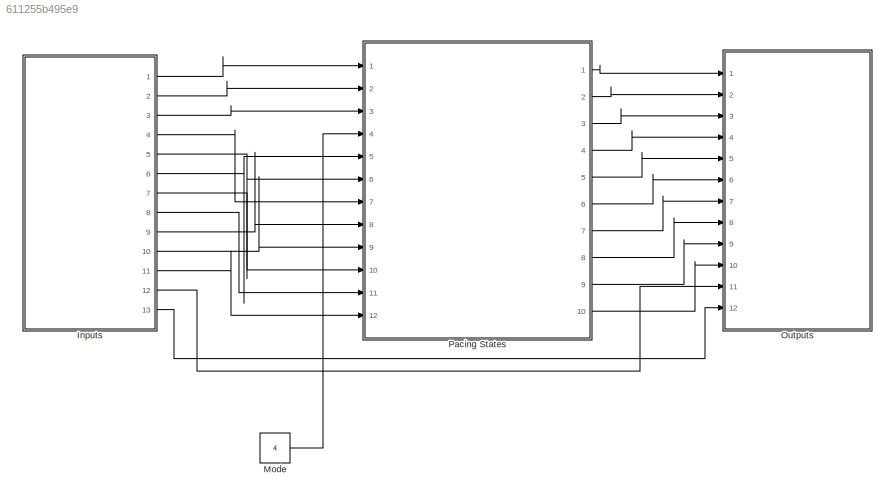
MODEL slx_611255b495e9
KIND model
CONFIG AbsTol = auto
CONFIG EnableMultiTasking = on
CONFIG FixedStep = 1e-3
CONFIG MaxStep = auto
CONFIG MinStep = auto
CONFIG RelTol = 1e-3
CONFIG SampleTimeConstraint = Unconstrained
CONFIG Solver = FixedStepAuto
CONFIG SolverName = FixedStepAuto
CONFIG StartTime = 0.0
CONFIG StopTime = 1.5
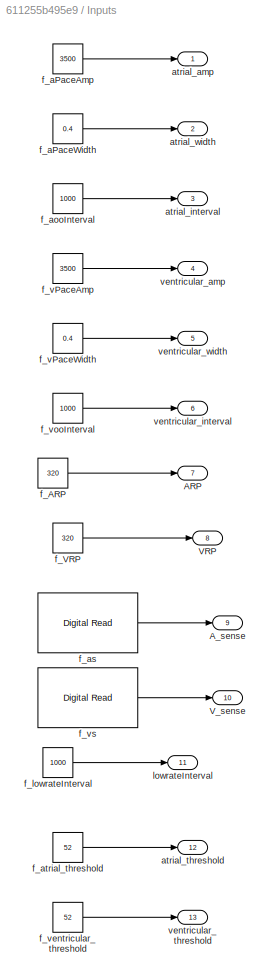
BLOCK [SubSystem] Inputs
  Ports = [0, 13]
  RequestExecContextInheritance = off
BLOCK [Outport] Inputs/ARP
  Port = 7
BLOCK [Outport] Inputs/A_sense
  Port = 9
BLOCK [Outport] Inputs/VRP
  Port = 8
BLOCK [Outport] Inputs/V_sense
  Port = 10
BLOCK [Outport] Inputs/atrial_amp
BLOCK [Outport] Inputs/atrial_interval
  Port = 3
BLOCK [Outport] Inputs/atrial_threshold
  Port = 12
BLOCK [Outport] Inputs/atrial_width
  Port = 2
BLOCK [Constant] Inputs/f_ARP
  Value = 320
BLOCK [Constant] Inputs/f_VRP
  Value = 320
BLOCK [Constant] Inputs/f_aPaceAmp
  Value = 3500
  VectorParams1D = off
BLOCK [Constant] Inputs/f_aPaceWidth
  Value = 0.4
BLOCK [Constant] Inputs/f_aooInterval
  Value = 1000
BLOCK [Reference] Inputs/f_as  REF=frdmk64flib/Digital Read
  Ports = [0, 1]
  SourceBlock = frdmk64flib/Digital Read
  SourceProductBaseCode = EC_FRDM_K64F
  SourceType = freedomk64f.DigitalRead
BLOCK [Constant] Inputs/f_atrial_threshold
  Value = 52
  VectorParams1D = off
BLOCK [Constant] Inputs/f_lowrateInterval
  Value = 1000
BLOCK [Constant] Inputs/f_vPaceAmp
  Value = 3500
  VectorParams1D = off
BLOCK [Constant] Inputs/f_vPaceWidth
  Value = 0.4
BLOCK [Constant] Inputs/f_ventricular_threshold
  Value = 52
BLOCK [Constant] Inputs/f_vooInterval
  Value = 1000
BLOCK [Reference] Inputs/f_vs  REF=frdmk64flib/Digital Read
  Ports = [0, 1]
  SourceBlock = frdmk64flib/Digital Read
  SourceProductBaseCode = EC_FRDM_K64F
  SourceType = freedomk64f.DigitalRead
BLOCK [Outport] Inputs/lowrateInterval
  Port = 11
BLOCK [Outport] Inputs/ventricular_amp
  Port = 4
BLOCK [Outport] Inputs/ventricular_interval
  Port = 6
BLOCK [Outport] Inputs/ventricular_threshold
  Port = 13
BLOCK [Outport] Inputs/ventricular_width
  Port = 5
BLOCK [Constant] Mode
  Value = 4
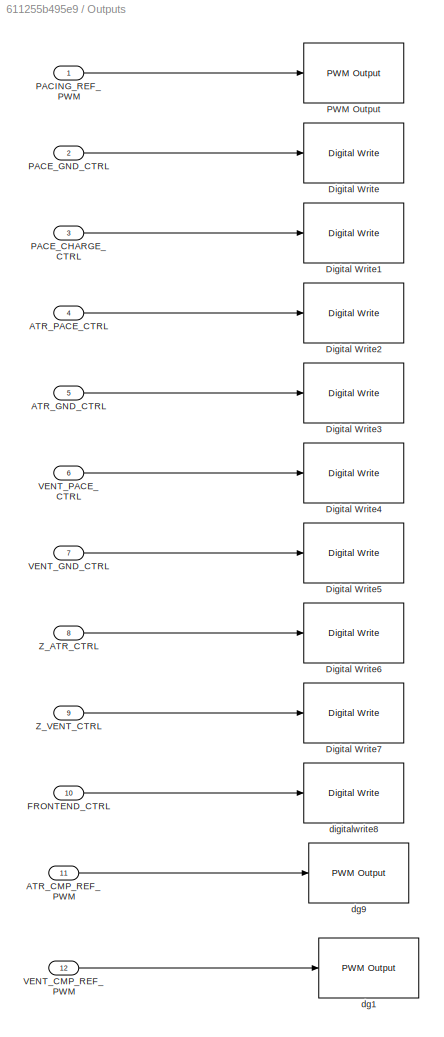
BLOCK [SubSystem] Outputs
  Ports = [12]
  RequestExecContextInheritance = off
BLOCK [Inport] Outputs/ATR_CMP_REF_PWM
  Port = 11
BLOCK [Inport] Outputs/ATR_GND_CTRL
  Port = 5
BLOCK [Inport] Outputs/ATR_PACE_CTRL
  Port = 4
BLOCK [Reference] Outputs/Digital Write  REF=frdmk64flib/Digital Write
  Ports = [1]
  SourceBlock = frdmk64flib/Digital Write
  SourceProductBaseCode = EC_FRDM_K64F
  SourceType = freedomk64f.DigitalWrite
BLOCK [Reference] Outputs/Digital Write1  REF=frdmk64flib/Digital Write
  Ports = [1]
  SourceBlock = frdmk64flib/Digital Write
  SourceProductBaseCode = EC_FRDM_K64F
  SourceType = freedomk64f.DigitalWrite
BLOCK [Reference] Outputs/Digital Write2  REF=frdmk64flib/Digital Write
  Ports = [1]
  SourceBlock = frdmk64flib/Digital Write
  SourceProductBaseCode = EC_FRDM_K64F
  SourceType = freedomk64f.DigitalWrite
BLOCK [Reference] Outputs/Digital Write3  REF=frdmk64flib/Digital Write
  Ports = [1]
  SourceBlock = frdmk64flib/Digital Write
  SourceProductBaseCode = EC_FRDM_K64F
  SourceType = freedomk64f.DigitalWrite
BLOCK [Reference] Outputs/Digital Write4  REF=frdmk64flib/Digital Write
  Ports = [1]
  SourceBlock = frdmk64flib/Digital Write
  SourceProductBaseCode = EC_FRDM_K64F
  SourceType = freedomk64f.DigitalWrite
BLOCK [Reference] Outputs/Digital Write5  REF=frdmk64flib/Digital Write
  Ports = [1]
  SourceBlock = frdmk64flib/Digital Write
  SourceProductBaseCode = EC_FRDM_K64F
  SourceType = freedomk64f.DigitalWrite
BLOCK [Reference] Outputs/Digital Write6  REF=frdmk64flib/Digital Write
  Ports = [1]
  SourceBlock = frdmk64flib/Digital Write
  SourceProductBaseCode = EC_FRDM_K64F
  SourceType = freedomk64f.DigitalWrite
BLOCK [Reference] Outputs/Digital Write7  REF=frdmk64flib/Digital Write
  Ports = [1]
  SourceBlock = frdmk64flib/Digital Write
  SourceProductBaseCode = EC_FRDM_K64F
  SourceType = freedomk64f.DigitalWrite
BLOCK [Inport] Outputs/FRONTEND_CTRL
  Port = 10
BLOCK [Inport] Outputs/PACE_CHARGE_CTRL
  Port = 3
BLOCK [Inport] Outputs/PACE_GND_CTRL
  Port = 2
BLOCK [Inport] Outputs/PACING_REF_PWM
BLOCK [Reference] Outputs/PWM Output  REF=frdmk64flib/PWM Output
  Ports = [1]
  SourceBlock = frdmk64flib/PWM Output
  SourceProductBaseCode = EC_FRDM_K64F
  SourceType = freedomk64f.PWMOutput
BLOCK [Inport] Outputs/VENT_CMP_REF_PWM
  Port = 12
BLOCK [Inport] Outputs/VENT_GND_CTRL
  Port = 7
BLOCK [Inport] Outputs/VENT_PACE_CTRL
  Port = 6
BLOCK [Inport] Outputs/Z_ATR_CTRL
  Port = 8
BLOCK [Inport] Outputs/Z_VENT_CTRL
  Port = 9
BLOCK [Reference] Outputs/dg1  REF=frdmk64flib/PWM Output
  Ports = [1]
  SourceBlock = frdmk64flib/PWM Output
  SourceProductBaseCode = EC_FRDM_K64F
  SourceType = freedomk64f.PWMOutput
BLOCK [Reference] Outputs/dg9  REF=frdmk64flib/PWM Output
  Ports = [1]
  SourceBlock = frdmk64flib/PWM Output
  SourceProductBaseCode = EC_FRDM_K64F
  SourceType = freedomk64f.PWMOutput
BLOCK [Reference] Outputs/digitalwrite8  REF=frdmk64flib/Digital Write
  Ports = [1]
  SourceBlock = frdmk64flib/Digital Write
  SourceProductBaseCode = EC_FRDM_K64F
  SourceType = freedomk64f.DigitalWrite
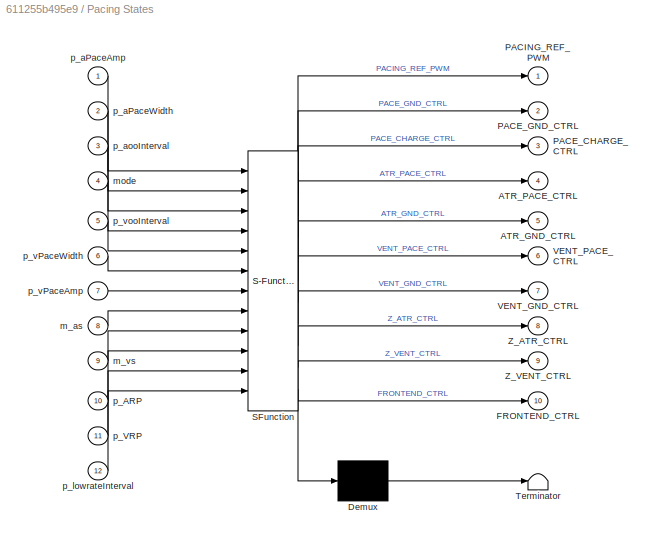
BLOCK [SubSystem] Pacing States
  ErrorFcn = Stateflow.Translate.translate
  PermitHierarchicalResolution = ExplicitOnly
  PortSchema = {"entries":[{"content":{"sides":[{"content":{"connectorIds":["In1","In2","In3","In7","In8","In9","In10","In11","In12","In6","In5","In4"]},"type":"ConnectorPlacement.EquallySpacedRectSide","uuid":"0802502d-289b-4258-bc43-1fdd19e28146"},{"content":{"connectorIds":["Out1","Out2","Out3","Out4","Out5","Out6","Out7","Out8","Out9","Out10"],"side":"RIGHT"},"type":"ConnectorPlacement.EquallySpacedRectSide"...<+375ch>
  Ports = [12, 10]
  RequestExecContextInheritance = off
  SFBlockType = Chart
  TreatAsAtomicUnit = on
BLOCK [Demux] Pacing States/ Demux 
  Outputs = 1
  Ports = [1, 1]
BLOCK [S-Function] Pacing States/ SFunction 
  EnableBusSupport = on
  FunctionName = sf_sfun
  PortCounts = [12 11]
  Ports = [12, 11]
  SFcnIsStateOwnerBlock = off
  SFunctionDeploymentMode = off
  Tag = Stateflow S-Function 3
BLOCK [Terminator] Pacing States/ Terminator 
BLOCK [Outport] Pacing States/ATR_GND_CTRL
  Port = 5
BLOCK [Outport] Pacing States/ATR_PACE_CTRL
  Port = 4
BLOCK [Outport] Pacing States/FRONTEND_CTRL
  Port = 10
BLOCK [Outport] Pacing States/PACE_CHARGE_CTRL
  Port = 3
BLOCK [Outport] Pacing States/PACE_GND_CTRL
  Port = 2
BLOCK [Outport] Pacing States/PACING_REF_PWM
BLOCK [Outport] Pacing States/VENT_GND_CTRL
  Port = 7
BLOCK [Outport] Pacing States/VENT_PACE_CTRL
  Port = 6
BLOCK [Outport] Pacing States/Z_ATR_CTRL
  Port = 8
BLOCK [Outport] Pacing States/Z_VENT_CTRL
  Port = 9
BLOCK [Inport] Pacing States/m_as
  Port = 8
BLOCK [Inport] Pacing States/m_vs
  Port = 9
BLOCK [Inport] Pacing States/mode
  Port = 4
BLOCK [Inport] Pacing States/p_ARP
  Port = 10
BLOCK [Inport] Pacing States/p_VRP
  Port = 11
BLOCK [Inport] Pacing States/p_aPaceAmp
BLOCK [Inport] Pacing States/p_aPaceWidth
  Port = 2
BLOCK [Inport] Pacing States/p_aooInterval
  Port = 3
BLOCK [Inport] Pacing States/p_lowrateInterval
  Port = 12
BLOCK [Inport] Pacing States/p_vPaceAmp
  Port = 7
BLOCK [Inport] Pacing States/p_vPaceWidth
  Port = 6
BLOCK [Inport] Pacing States/p_vooInterval
  Port = 5
LINE Inputs/f_ARP:1 -> Inputs/ARP:1
LINE Inputs/f_VRP:1 -> Inputs/VRP:1
LINE Inputs/f_aPaceAmp:1 -> Inputs/atrial_amp:1
LINE Inputs/f_aPaceWidth:1 -> Inputs/atrial_width:1
LINE Inputs/f_aooInterval:1 -> Inputs/atrial_interval:1
LINE Inputs/f_as:1 -> Inputs/A_sense:1
LINE Inputs/f_atrial_threshold:1 -> Inputs/atrial_threshold:1
LINE Inputs/f_lowrateInterval:1 -> Inputs/lowrateInterval:1
LINE Inputs/f_vPaceAmp:1 -> Inputs/ventricular_amp:1
LINE Inputs/f_vPaceWidth:1 -> Inputs/ventricular_width:1
LINE Inputs/f_ventricular_threshold:1 -> Inputs/ventricular_threshold:1
LINE Inputs/f_vooInterval:1 -> Inputs/ventricular_interval:1
LINE Inputs/f_vs:1 -> Inputs/V_sense:1
LINE Inputs:1 -> Pacing States:1
LINE Inputs:10 -> Pacing States:9
LINE Inputs:11 -> Pacing States:12
LINE Inputs:12 -> Outputs:11
LINE Inputs:13 -> Outputs:12
LINE Inputs:2 -> Pacing States:2
LINE Inputs:3 -> Pacing States:3
LINE Inputs:4 -> Pacing States:7
LINE Inputs:5 -> Pacing States:6
LINE Inputs:6 -> Pacing States:5
LINE Inputs:7 -> Pacing States:10
LINE Inputs:8 -> Pacing States:11
LINE Inputs:9 -> Pacing States:8
LINE Mode:1 -> Pacing States:4
LINE Outputs/ATR_CMP_REF_PWM:1 -> Outputs/dg9:1
LINE Outputs/ATR_GND_CTRL:1 -> Outputs/Digital Write3:1
LINE Outputs/ATR_PACE_CTRL:1 -> Outputs/Digital Write2:1
LINE Outputs/FRONTEND_CTRL:1 -> Outputs/digitalwrite8:1
LINE Outputs/PACE_CHARGE_CTRL:1 -> Outputs/Digital Write1:1
LINE Outputs/PACE_GND_CTRL:1 -> Outputs/Digital Write:1
LINE Outputs/PACING_REF_PWM:1 -> Outputs/PWM Output:1
LINE Outputs/VENT_CMP_REF_PWM:1 -> Outputs/dg1:1
LINE Outputs/VENT_GND_CTRL:1 -> Outputs/Digital Write5:1
LINE Outputs/VENT_PACE_CTRL:1 -> Outputs/Digital Write4:1
LINE Outputs/Z_ATR_CTRL:1 -> Outputs/Digital Write6:1
LINE Outputs/Z_VENT_CTRL:1 -> Outputs/Digital Write7:1
LINE Pacing States:1 -> Outputs:1
LINE Pacing States:10 -> Outputs:10
LINE Pacing States:2 -> Outputs:2
LINE Pacing States:3 -> Outputs:3
LINE Pacing States:4 -> Outputs:4
LINE Pacing States:5 -> Outputs:5
LINE Pacing States:6 -> Outputs:6
LINE Pacing States:7 -> Outputs:7
LINE Pacing States:8 -> Outputs:8
LINE Pacing States:9 -> Outputs:9
CHART Pacing States states=19 transitions=29
  STATE_LABEL 'Initialization\nentry:\nPACE_CHARGE_CTRL = 0\nPACE_GND_CTRL = 0\nATR_PACE_CTRL = 0\nATR_GND_CTRL = 0\nVENT_GND_CTRL = 0\nVENT_PACE_CTRL = 0\nPACING_REF_PWM = 0'
  STATE_LABEL 'AOO\nentry:\n  FRONTEND_CTRL = 0;\n'
  STATE_LABEL 'Discharging_C21\nentry:\nPACE_GND_CTRL = 1\nATR_PACE_CTRL = 0\n%Z_ATR_CTRL = 0\n%Z_VENT_CTRL = 0\n%VENT_PACE_CTRL = 0\n%VENT_GND_CTRL = 0\nATR_GND_CTRL = 1\n'
  STATE_LABEL 'Pacing_atrium\nentry:\nPACE_CHARGE_CTRL = 0\nPACE_GND_CTRL = 1\nATR_PACE_CTRL = 1\nATR_GND_CTRL = 0\n%Z_ATR_CTRL = 0\n%Z_VENT_CTRL = 0\n%VENT_GND_CTRL = 0\n%VENT_PACE_CTRL = 0\nPACING_REF_PWM = 0'
  STATE_LABEL 'Charging_C22\nentry:\nATR_PACE_CTRL = 0\n%VENT_PACE_CTRL = 0\nPACING_REF_PWM = p_aPaceAmp/max_V*100\nPACE_CHARGE_CTRL = 1\n'
  STATE_LABEL 'after(p_aPaceWidth, msec)'
  STATE_LABEL '[after(p_aooInterval-p_aPaceWidth, msec) ]'
  STATE_LABEL 'Discharging_C21\nentry:\nPACE_GND_CTRL = 1\nATR_PACE_CTRL = 0\n%Z_ATR_CTRL = 0\n%Z_VENT_CTRL = 0\n%VENT_PACE_CTRL = 0\n%VENT_GND_CTRL = 0\nATR_GND_CTRL = 1\n'
  STATE_LABEL 'Pacing_atrium\nentry:\nPACE_CHARGE_CTRL = 0\nPACE_GND_CTRL = 1\nATR_PACE_CTRL = 1\nATR_GND_CTRL = 0\n%Z_ATR_CTRL = 0\n%Z_VENT_CTRL = 0\n%VENT_GND_CTRL = 0\n%VENT_PACE_CTRL = 0\nPACING_REF_PWM = 0'
  STATE_LABEL 'Charging_C22\nentry:\nATR_PACE_CTRL = 0\n%VENT_PACE_CTRL = 0\nPACING_REF_PWM = p_aPaceAmp/max_V*100\nPACE_CHARGE_CTRL = 1\n'
  STATE_LABEL 'VOO\nentry:\n  FRONTEND_CTRL = 0;\n'
  STATE_LABEL 'Discharging_C21\nentry:\nPACE_GND_CTRL = 1\n%ATR_PACE_CTRL = 0\n%Z_ATR_CTRL = 0\n%Z_VENT_CTRL = 0\nVENT_PACE_CTRL = 0\nVENT_GND_CTRL = 1\n%ATR_GND_CTRL = 1\n'
  STATE_LABEL 'Pacing_ventricle\nentry:\nPACE_CHARGE_CTRL = 0\nPACE_GND_CTRL = 1\n%ATR_PACE_CTRL = 1\n%ATR_GND_CTRL = 0\n%Z_ATR_CTRL = 0\n%Z_VENT_CTRL = 0\nVENT_PACE_CTRL = 1\nVENT_GND_CTRL = 0\nPACING_REF_PWM = 0'
  STATE_LABEL 'Charging_C22\nentry:\n%ATR_PACE_CTRL = 0\nVENT_PACE_CTRL = 0\nPACING_REF_PWM = p_vPaceAmp/max_V*100\nPACE_CHARGE_CTRL = 1\n'
  STATE_LABEL 'after(p_vPaceWidth, msec)'
  STATE_LABEL '[after(p_vooInterval-p_vPaceWidth, msec) ]'
  STATE_LABEL 'Discharging_C21\nentry:\nPACE_GND_CTRL = 1\n%ATR_PACE_CTRL = 0\n%Z_ATR_CTRL = 0\n%Z_VENT_CTRL = 0\nVENT_PACE_CTRL = 0\nVENT_GND_CTRL = 1\n%ATR_GND_CTRL = 1\n'
  STATE_LABEL 'Pacing_ventricle\nentry:\nPACE_CHARGE_CTRL = 0\nPACE_GND_CTRL = 1\n%ATR_PACE_CTRL = 1\n%ATR_GND_CTRL = 0\n%Z_ATR_CTRL = 0\n%Z_VENT_CTRL = 0\nVENT_PACE_CTRL = 1\nVENT_GND_CTRL = 0\nPACING_REF_PWM = 0'
  STATE_LABEL 'Charging_C22\nentry:\n%ATR_PACE_CTRL = 0\nVENT_PACE_CTRL = 0\nPACING_REF_PWM = p_vPaceAmp/max_V*100\nPACE_CHARGE_CTRL = 1\n'
  STATE_LABEL 'AAI\nentry:\n  FRONTEND_CTRL = 1;\n'
  STATE_LABEL 'Discharging_C21\nentry:\nPACE_GND_CTRL = 1\nVENT_PACE_CTRL = 0\nZ_ATR_CTRL = 0\nZ_VENT_CTRL = 0\nATR_PACE_CTRL = 0\nATR_GND_CTRL = 1\nVENT_GND_CTRL = 0\n'
  STATE_LABEL 'Pacing_atrium\nentry:\nPACE_CHARGE_CTRL = 0\nPACE_GND_CTRL = 1\nATR_PACE_CTRL = 1\nATR_GND_CTRL = 0\nZ_ATR_CTRL = 0\nZ_VENT_CTRL = 0\nVENT_GND_CTRL = 0\nVENT_PACE_CTRL = 0\n'
  STATE_LABEL 'ARP\n'
  STATE_LABEL 'Charging_C22\nentry:\nATR_PACE_CTRL = 0\nVENT_PACE_CTRL = 0\nPACING_REF_PWM = p_aPaceAmp/max_V*100\nPACE_CHARGE_CTRL = 1\n'
  STATE_LABEL 'after(p_aPaceWidth, msec)'
  STATE_LABEL '[m_as == 0]'
  STATE_LABEL '[m_as == 1]'
  STATE_LABEL '[after(p_lowrateInterval-p_aPaceWidth-p_ARP, msec) ]'
  STATE_LABEL '[m_as == 1]'
  STATE_LABEL '[after(p_ARP,msec)]'
  STATE_LABEL 'Discharging_C21\nentry:\nPACE_GND_CTRL = 1\nVENT_PACE_CTRL = 0\nZ_ATR_CTRL = 0\nZ_VENT_CTRL = 0\nATR_PACE_CTRL = 0\nATR_GND_CTRL = 1\nVENT_GND_CTRL = 0\n'
  STATE_LABEL 'Pacing_atrium\nentry:\nPACE_CHARGE_CTRL = 0\nPACE_GND_CTRL = 1\nATR_PACE_CTRL = 1\nATR_GND_CTRL = 0\nZ_ATR_CTRL = 0\nZ_VENT_CTRL = 0\nVENT_GND_CTRL = 0\nVENT_PACE_CTRL = 0\n'
  STATE_LABEL 'ARP\n'
  STATE_LABEL 'Charging_C22\nentry:\nATR_PACE_CTRL = 0\nVENT_PACE_CTRL = 0\nPACING_REF_PWM = p_aPaceAmp/max_V*100\nPACE_CHARGE_CTRL = 1\n'
  STATE_LABEL 'VVI\nentry:\n  FRONTEND_CTRL = 1;\n'
  STATE_LABEL 'Discharging_C21\nentry:\nPACE_GND_CTRL = 1\nVENT_PACE_CTRL = 0\nZ_ATR_CTRL = 0\nZ_VENT_CTRL = 0\nATR_PACE_CTRL = 0\nATR_GND_CTRL = 0\nVENT_GND_CTRL = 1\n'
  STATE_LABEL 'Pacing_ventricle\nentry:\nPACE_CHARGE_CTRL = 0\nPACE_GND_CTRL = 1\nATR_PACE_CTRL = 0\nATR_GND_CTRL = 0\nZ_ATR_CTRL = 0\nZ_VENT_CTRL = 0\nVENT_GND_CTRL = 0\nVENT_PACE_CTRL = 1\n'
  STATE_LABEL 'VRP\n'
  STATE_LABEL 'Charging_C22\nentry:\nATR_PACE_CTRL = 0\nVENT_PACE_CTRL = 0\nPACING_REF_PWM = p_vPaceAmp/max_V*100\nPACE_CHARGE_CTRL = 1\n'
  STATE_LABEL 'after(p_vPaceWidth, msec)'
CHART  states=0 transitions=0
